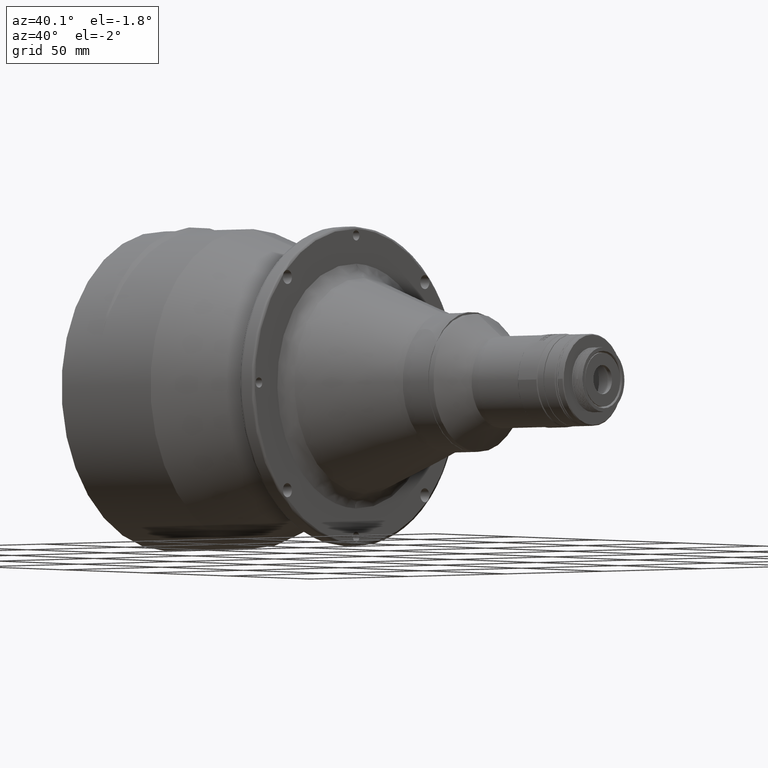
[diagram: clean part render]
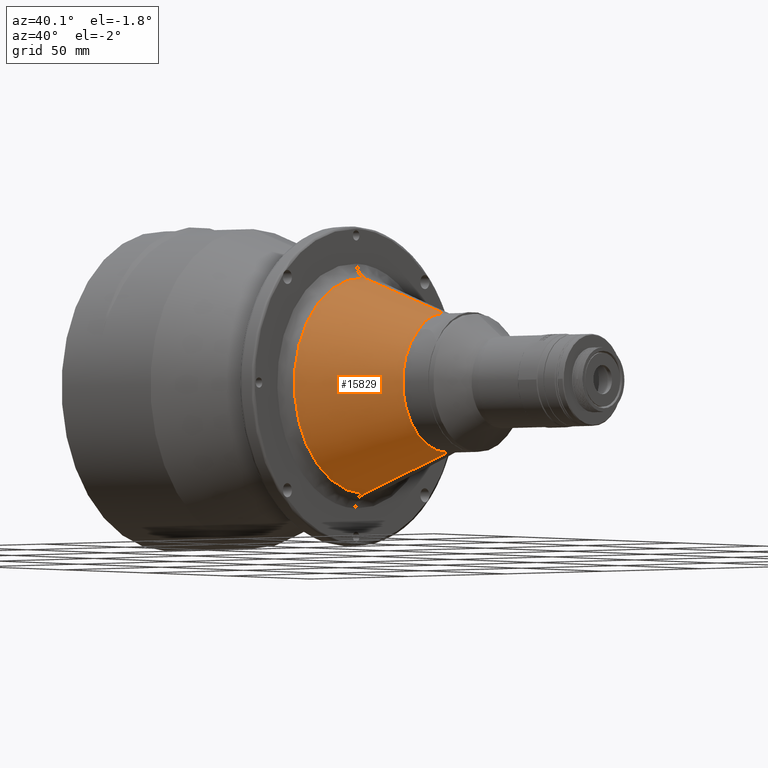
[diagram: same view with one face highlighted and labeled with its STEP entity id]
A machine part, auxiliary view. The second image highlights one B-rep face of the part: STEP entity #15829.
In plain terms, the highlighted conical surface has half-angle 19.709 deg.
Its self-contained STEP definition (entity closure, byte-faithful):
#261 = CARTESIAN_POINT ( 'NONE',  ( -13.00042538673271331, -3.257422948773624594, 25.48765168312097273 ) ) ;
#395 = AXIS2_PLACEMENT_3D ( 'NONE', #14688, #2650, #11745 ) ;
#909 = B_SPLINE_CURVE_WITH_KNOTS ( 'NONE', 3,
 ( #10795, #13671, #16811, #4481, #12181, #12088, #13759, #7854, #10499, #15232, #261, #13567, #1810, #9034 ),
 .UNSPECIFIED., .F., .F.,
 ( 4, 2, 2, 2, 2, 2, 4 ),
 ( 0.000000000000000000, 0.004850507797871215707, 0.007275761696806825295, 0.009701015595742436617, 0.01455152339361365579, 0.01697677729254926798, 0.01940203119148487670 ),
 .UNSPECIFIED. ) ;
#1749 = ORIENTED_EDGE ( 'NONE', *, *, #8762, .F. ) ;
#1810 = CARTESIAN_POINT ( 'NONE',  ( -13.03999425428697734, -0.8109762436688735532, 25.68319252340852543 ) ) ;
#2455 = CARTESIAN_POINT ( 'NONE',  ( -13.03999425428709813, -2.022119044000465932E-11, 25.68319252340917203 ) ) ;
#2650 = DIRECTION ( 'NONE',  ( -1.000000000000000000, 0.000000000000000000, 0.000000000000000000 ) ) ;
#3041 = EDGE_CURVE ( 'NONE', #11036, #14023, #8324, .T. ) ;
#3240 = DIRECTION ( 'NONE',  ( 0.000000000000000000, 0.000000000000000000, 1.000000000000000000 ) ) ;
#3527 = CIRCLE ( 'NONE', #16438, 42.24401512069321996 ) ;
#3993 = CARTESIAN_POINT ( 'NONE',  ( -11.62136427099999914, 3.306546357697854522E-15, -28.82500156100000765 ) ) ;
#4481 = CARTESIAN_POINT ( 'NONE',  ( -12.30776851643975611, -13.14019401690924305, 22.05635130587238280 ) ) ;
#4720 = DIRECTION ( 'NONE',  ( -1.000000000000000000, -0.000000000000000000, -0.000000000000000000 ) ) ;
#4727 = VERTEX_POINT ( 'NONE', #2455 ) ;
#4829 = AXIS2_PLACEMENT_3D ( 'NONE', #9390, #6440, #11062 ) ;
#4847 = AXIS2_PLACEMENT_3D ( 'NONE', #6273, #18493, #4985 ) ;
#4985 = DIRECTION ( 'NONE',  ( -3.212450881438530663E-15, 8.881784197001252323E-16, 1.000000000000000000 ) ) ;
#5153 = VERTEX_POINT ( 'NONE', #16833 ) ;
#5773 = CARTESIAN_POINT ( 'NONE',  ( -11.62136427099991209, 0.000000000000000000, -28.82500156100001121 ) ) ;
#6273 = CARTESIAN_POINT ( 'NONE',  ( -11.62136427099991209, 0.000000000000000000, -1.825001561000000105 ) ) ;
#6314 = ORIENTED_EDGE ( 'NONE', *, *, #8296, .F. ) ;
#6440 = DIRECTION ( 'NONE',  ( -1.000000000000000000, 0.000000000000000000, 0.000000000000000000 ) ) ;
#6812 = FACE_OUTER_BOUND ( 'NONE', #13511, .T. ) ;
#6931 = ORIENTED_EDGE ( 'NONE', *, *, #8601, .F. ) ;
#7209 = CARTESIAN_POINT ( 'NONE',  ( -11.62136427099999914, 0.000000000000000000, 25.17499843900000656 ) ) ;
#7285 = EDGE_CURVE ( 'NONE', #4727, #12210, #17559, .T. ) ;
#7854 = CARTESIAN_POINT ( 'NONE',  ( -12.79118318120258913, -7.994377485267841976, 24.45298091430283449 ) ) ;
#8296 = EDGE_CURVE ( 'NONE', #14023, #14900, #17504, .T. ) ;
#8324 = CIRCLE ( 'NONE', #4847, 27.00000000000000711 ) ;
#8601 = EDGE_CURVE ( 'NONE', #14900, #5153, #10452, .T. ) ;
#8762 = EDGE_CURVE ( 'NONE', #5153, #12210, #3527, .T. ) ;
#9034 = CARTESIAN_POINT ( 'NONE',  ( -13.03999425428709813, -2.022119044000465932E-11, 25.68319252340917203 ) ) ;
#9260 = CARTESIAN_POINT ( 'NONE',  ( -11.62136427099999736, -17.61189269634041210, 18.64012085868250779 ) ) ;
#9390 = CARTESIAN_POINT ( 'NONE',  ( -11.62136427099999914, 0.000000000000000000, -1.825001560999999661 ) ) ;
#9928 = EDGE_CURVE ( 'NONE', #11036, #4727, #909, .T. ) ;
#10006 = DIRECTION ( 'NONE',  ( -0.9414176683108845811, 4.130034383682125500E-17, -0.3372429002841975665 ) ) ;
#10020 = CARTESIAN_POINT ( 'NONE',  ( -54.17521835900000582, 0.000000000000000000, 40.41901356000000334 ) ) ;
#10452 = CIRCLE ( 'NONE', #395, 42.24401512099999678 ) ;
#10499 = CARTESIAN_POINT ( 'NONE',  ( -12.88331288166268607, -6.445719159030557144, 24.90865108935649275 ) ) ;
#10795 = CARTESIAN_POINT ( 'NONE',  ( -11.62136427099999736, -17.61189269634041210, 18.64012085868250779 ) ) ;
#11036 = VERTEX_POINT ( 'NONE', #9260 ) ;
#11062 = DIRECTION ( 'NONE',  ( 0.000000000000000000, 0.000000000000000000, 1.000000000000000000 ) ) ;
#11166 = ORIENTED_EDGE ( 'NONE', *, *, #3041, .F. ) ;
#11522 = VECTOR ( 'NONE', #19228, 1000.000000000000227 ) ;
#11745 = DIRECTION ( 'NONE',  ( 1.642574429545126805E-15, 0.000000000000000000, 1.000000000000000000 ) ) ;
#12088 = CARTESIAN_POINT ( 'NONE',  ( -12.53915485968579269, -11.00222251335970824, 23.20437120935435971 ) ) ;
#12181 = CARTESIAN_POINT ( 'NONE',  ( -12.38912871296846951, -12.44238057630244221, 22.46019880902241539 ) ) ;
#12210 = VERTEX_POINT ( 'NONE', #10020 ) ;
#13511 = EDGE_LOOP ( 'NONE', ( #6314, #11166, #14880, #15791, #1749, #6931 ) ) ;
#13567 = CARTESIAN_POINT ( 'NONE',  ( -13.03214990722374189, -1.626942010554480733, 25.64443489854773972 ) ) ;
#13671 = CARTESIAN_POINT ( 'NONE',  ( -11.84573982196982733, -16.43457386086422645, 19.75934275097627690 ) ) ;
#13759 = CARTESIAN_POINT ( 'NONE',  ( -12.60806274105652314, -10.25617131684655092, 23.54589295316562314 ) ) ;
#13774 = CARTESIAN_POINT ( 'NONE',  ( -54.17521835900007687, 5.173399790106506526E-15, -44.06901668200002575 ) ) ;
#14023 = VERTEX_POINT ( 'NONE', #5773 ) ;
#14688 = CARTESIAN_POINT ( 'NONE',  ( -54.17521835900007687, 0.000000000000000000, -1.825001561000000105 ) ) ;
#14880 = ORIENTED_EDGE ( 'NONE', *, *, #9928, .T. ) ;
#14900 = VERTEX_POINT ( 'NONE', #13774 ) ;
#15232 = CARTESIAN_POINT ( 'NONE',  ( -12.97677431705304407, -4.062122738949828005, 25.37075785251314031 ) ) ;
#15481 = VECTOR ( 'NONE', #10006, 1000.000000000000227 ) ;
#15791 = ORIENTED_EDGE ( 'NONE', *, *, #7285, .T. ) ;
#15829 = ADVANCED_FACE ( 'NONE', ( #6812 ), #16799, .T. ) ;
#16438 = AXIS2_PLACEMENT_3D ( 'NONE', #18233, #4720, #3240 ) ;
#16799 = CONICAL_SURFACE ( 'NONE', #4829, 27.00000000000000711, 0.3439866875247680200 ) ;
#16811 = CARTESIAN_POINT ( 'NONE',  ( -12.04522503551725521, -15.16854549375359973, 20.75194277925545450 ) ) ;
#16833 = CARTESIAN_POINT ( 'NONE',  ( -54.17521835900000582, -0.4418885333864205900, -44.06670545712496789 ) ) ;
#17504 = LINE ( 'NONE', #3993, #15481 ) ;
#17559 = LINE ( 'NONE', #7209, #11522 ) ;
#18233 = CARTESIAN_POINT ( 'NONE',  ( -54.17521835900000582, 0.000000000000000000, -1.825001560999996109 ) ) ;
#18493 = DIRECTION ( 'NONE',  ( 1.000000000000000000, -0.000000000000000000, -0.000000000000000000 ) ) ;
#19228 = DIRECTION ( 'NONE',  ( -0.9414176683108845811, 0.000000000000000000, 0.3372429002841975665 ) ) ;